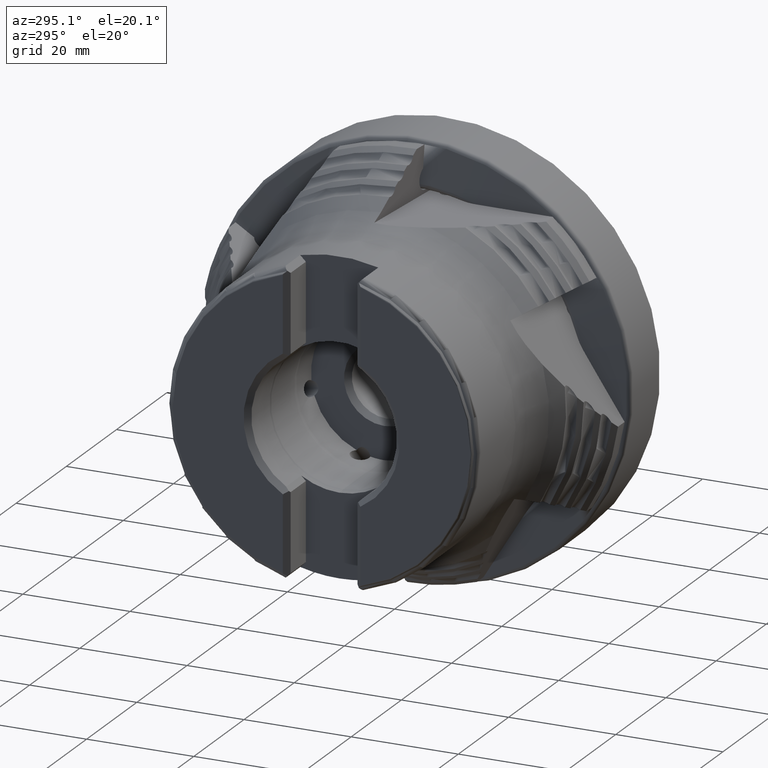
[diagram: clean part render]
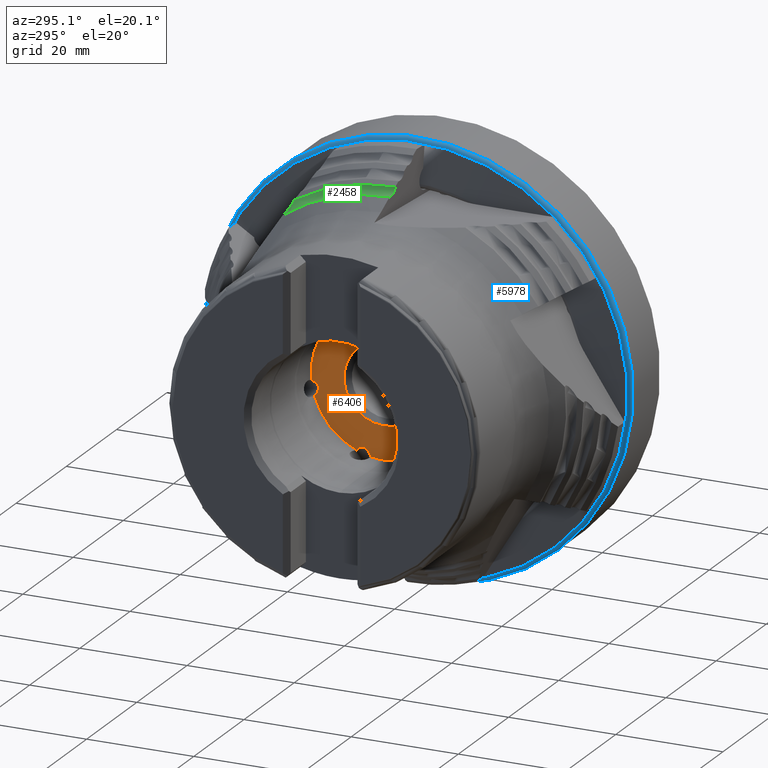
[diagram: same view with three faces highlighted in distinct colors, each labeled with its STEP entity id]
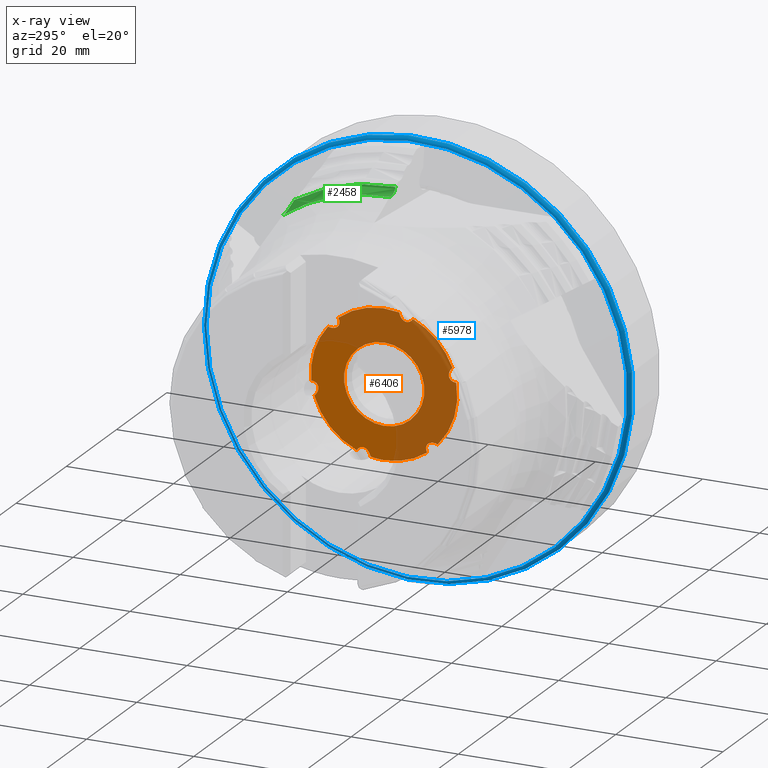
[diagram: x-ray of the same camera — body ghosted, the three highlighted faces saturated]
A machine part, auxiliary view with three faces highlighted in distinct colors.
The next image is the same camera in x-ray (body ghosted, the three faces saturated) — at least one of them is partly hidden behind the body in this view.
Their STEP definitions:

[orange] entity #6406 — the highlighted planar face has unit normal (1, 0, -0).
#122 = EDGE_CURVE ( 'NONE', #3301, #6272, #2686, .T. ) ;
#251 = DIRECTION ( 'NONE',  ( 1.000000000000000000, -0.0000000000000000000, -0.0000000000000000000 ) ) ;
#507 = DIRECTION ( 'NONE',  ( 0.0000000000000000000, 0.0000000000000000000, -1.000000000000000000 ) ) ;
#550 = ORIENTED_EDGE ( 'NONE', *, *, #2472, .T. ) ;
#559 = CARTESIAN_POINT ( 'NONE',  ( -24.14999999999999900, -5.355166302329699600, 12.55566381655676600 ) ) ;
#653 = AXIS2_PLACEMENT_3D ( 'NONE', #3065, #1648, #3492 ) ;
#677 = CARTESIAN_POINT ( 'NONE',  ( -24.14999999999999900, -12.72965397167429900, 4.927312630779319100 ) ) ;
#855 = ORIENTED_EDGE ( 'NONE', *, *, #4727, .T. ) ;
#1000 = DIRECTION ( 'NONE',  ( 1.000000000000000000, 0.0000000000000000000, -0.0000000000000000000 ) ) ;
#1160 = VERTEX_POINT ( 'NONE', #2982 ) ;
#1161 = CIRCLE ( 'NONE', #6235, 13.64999999999999700 ) ;
#1203 = CARTESIAN_POINT ( 'NONE',  ( -24.14999999999999900, 13.04235712854741000, -4.027334171810024600 ) ) ;
#1240 = CARTESIAN_POINT ( 'NONE',  ( -24.14999999999999900, 0.0000000000000000000, 0.0000000000000000000 ) ) ;
#1398 = EDGE_CURVE ( 'NONE', #7411, #3407, #5257, .T. ) ;
#1439 = EDGE_CURVE ( 'NONE', #7411, #1978, #6892, .T. ) ;
#1487 = CARTESIAN_POINT ( 'NONE',  ( -24.15000000000000200, -11.77646772936448900, 2.329950248189415400 ) ) ;
#1625 = CARTESIAN_POINT ( 'NONE',  ( -24.14999999999999900, 7.747165251437008800, 9.170348461575679600 ) ) ;
#1648 = DIRECTION ( 'NONE',  ( 1.000000000000000000, -0.0000000000000000000, -0.0000000000000000000 ) ) ;
#1714 = CARTESIAN_POINT ( 'NONE',  ( -24.14999999999999900, 0.0000000000000000000, 0.0000000000000000000 ) ) ;
#1820 = DIRECTION ( 'NONE',  ( 0.0000000000000000000, 0.0000000000000000000, -1.000000000000000000 ) ) ;
#1841 = AXIS2_PLACEMENT_3D ( 'NONE', #2883, #251, #507 ) ;
#1854 = CARTESIAN_POINT ( 'NONE',  ( -24.14999999999999900, -8.274319442910988100, -8.661872970892984500 ) ) ;
#1883 = EDGE_CURVE ( 'NONE', #6963, #6963, #2752, .T. ) ;
#1953 = FACE_OUTER_BOUND ( 'NONE', #6066, .T. ) ;
#1961 = CARTESIAN_POINT ( 'NONE',  ( -24.14999999999999900, 5.135224136547505800, -12.64721206699007400 ) ) ;
#1978 = VERTEX_POINT ( 'NONE', #6080 ) ;
#2060 = AXIS2_PLACEMENT_3D ( 'NONE', #7524, #7481, #5151 ) ;
#2140 = CIRCLE ( 'NONE', #6830, 13.64999999999999700 ) ;
#2156 = PLANE ( 'NONE',  #7587 ) ;
#2174 = DIRECTION ( 'NONE',  ( 1.000000000000000000, -0.0000000000000000000, -0.0000000000000000000 ) ) ;
#2288 = CARTESIAN_POINT ( 'NONE',  ( -24.14999999999999900, -4.459863322073081400, 11.14555873378392400 ) ) ;
#2326 = EDGE_CURVE ( 'NONE', #2745, #4959, #5345, .T. ) ;
#2472 = EDGE_CURVE ( 'NONE', #3301, #2589, #4269, .T. ) ;
#2474 = CARTESIAN_POINT ( 'NONE',  ( -24.14999999999999900, -8.004189918986114100, -11.05691836547605800 ) ) ;
#2589 = VERTEX_POINT ( 'NONE', #6225 ) ;
#2681 = ORIENTED_EDGE ( 'NONE', *, *, #7423, .F. ) ;
#2686 = CIRCLE ( 'NONE', #653, 13.64999999999999700 ) ;
#2727 = CARTESIAN_POINT ( 'NONE',  ( -24.14999999999999900, -12.72965397167429900, 4.927312630779319100 ) ) ;
#2745 = VERTEX_POINT ( 'NONE', #4218 ) ;
#2752 = CIRCLE ( 'NONE', #1841, 7.500000000000000900 ) ;
#2760 = CARTESIAN_POINT ( 'NONE',  ( -24.14999999999999900, 7.500000000000000900, 0.0000000000000000000 ) ) ;
#2836 = CARTESIAN_POINT ( 'NONE',  ( -24.14999999999999900, 8.716307180471522600, 8.216957754721477200 ) ) ;
#2868 = CARTESIAN_POINT ( 'NONE',  ( -24.14999999999999900, 2.567090770912582100, -13.40643669935806800 ) ) ;
#2876 = EDGE_CURVE ( 'NONE', #5522, #7275, #3687, .T. ) ;
#2883 = CARTESIAN_POINT ( 'NONE',  ( -24.14999999999999900, 0.0000000000000000000, 0.0000000000000000000 ) ) ;
#2982 = CARTESIAN_POINT ( 'NONE',  ( -24.14999999999999900, 8.571894850641234200, 10.62285830977468500 ) ) ;
#3065 = CARTESIAN_POINT ( 'NONE',  ( -24.14999999999999900, 0.0000000000000000000, 0.0000000000000000000 ) ) ;
#3083 = CARTESIAN_POINT ( 'NONE',  ( -24.14999999999999900, -10.00895226659014100, -9.281345512646362600 ) ) ;
#3207 = ORIENTED_EDGE ( 'NONE', *, *, #1398, .F. ) ;
#3301 = VERTEX_POINT ( 'NONE', #4167 ) ;
#3314 =( BOUNDED_CURVE ( )  B_SPLINE_CURVE ( 3, ( #5687, #1487, #6284, #2727 ),
 .UNSPECIFIED., .F., .T. ) 
 B_SPLINE_CURVE_WITH_KNOTS ( ( 4, 4 ),
 ( 2.283164507026651100, 4.412173605679448100 ),
 .UNSPECIFIED. ) 
 CURVE ( )  GEOMETRIC_REPRESENTATION_ITEM ( )  RATIONAL_B_SPLINE_CURVE ( ( 1.000000000000000000, 0.6566250446763890500, 0.6566250446763890500, 1.000000000000000000 ) ) 
 REPRESENTATION_ITEM ( '' )  );
#3407 = VERTEX_POINT ( 'NONE', #677 ) ;
#3492 = DIRECTION ( 'NONE',  ( 0.0000000000000000000, 0.0000000000000000000, -1.000000000000000000 ) ) ;
#3495 = ORIENTED_EDGE ( 'NONE', *, *, #2876, .F. ) ;
#3558 = FACE_BOUND ( 'NONE', #6748, .T. ) ;
#3671 = AXIS2_PLACEMENT_3D ( 'NONE', #1714, #6472, #4667 ) ;
#3687 = CIRCLE ( 'NONE', #2060, 13.64999999999999700 ) ;
#3921 =( BOUNDED_CURVE ( )  B_SPLINE_CURVE ( 3, ( #5795, #1625, #2836, #6975 ),
 .UNSPECIFIED., .F., .F. ) 
 B_SPLINE_CURVE_WITH_KNOTS ( ( 4, 4 ),
 ( 2.283164507026502300, 4.412173605679598200 ),
 .UNSPECIFIED. ) 
 CURVE ( )  GEOMETRIC_REPRESENTATION_ITEM ( )  RATIONAL_B_SPLINE_CURVE ( ( 1.000000000000000000, 0.6566250446763020100, 0.6566250446763020100, 1.000000000000000000 ) ) 
 REPRESENTATION_ITEM ( '' )  );
#4104 = CARTESIAN_POINT ( 'NONE',  ( -24.14999999999999900, -3.163084716417135400, 11.55367044207115300 ) ) ;
#4119 = ORIENTED_EDGE ( 'NONE', *, *, #6969, .T. ) ;
#4167 = CARTESIAN_POINT ( 'NONE',  ( -24.14999999999999900, 5.135224136547505800, -12.64721206699007400 ) ) ;
#4175 = EDGE_CURVE ( 'NONE', #1160, #1978, #1161, .T. ) ;
#4187 = CARTESIAN_POINT ( 'NONE',  ( -24.14999999999999900, 13.57766715156602500, -1.403372623819154400 ) ) ;
#4218 = CARTESIAN_POINT ( 'NONE',  ( -24.14999999999999900, -13.44669831120930300, 2.347084260805637700 ) ) ;
#4269 =( BOUNDED_CURVE ( )  B_SPLINE_CURVE ( 3, ( #1961, #7506, #4430, #2868 ),
 .UNSPECIFIED., .F., .F. ) 
 B_SPLINE_CURVE_WITH_KNOTS ( ( 4, 4 ),
 ( 2.283164507026531600, 4.412173605679568800 ),
 .UNSPECIFIED. ) 
 CURVE ( )  GEOMETRIC_REPRESENTATION_ITEM ( )  RATIONAL_B_SPLINE_CURVE ( ( 1.000000000000000000, 0.6566250446763191000, 0.6566250446763191000, 1.000000000000000000 ) ) 
 REPRESENTATION_ITEM ( '' )  );
#4295 = DIRECTION ( 'NONE',  ( 0.0000000000000000000, 0.0000000000000000000, -1.000000000000000000 ) ) ;
#4428 =( BOUNDED_CURVE ( )  B_SPLINE_CURVE ( 3, ( #4187, #6487, #4764, #1203 ),
 .UNSPECIFIED., .F., .F. ) 
 B_SPLINE_CURVE_WITH_KNOTS ( ( 4, 4 ),
 ( 2.283164507026590200, 4.412173605679510200 ),
 .UNSPECIFIED. ) 
 CURVE ( )  GEOMETRIC_REPRESENTATION_ITEM ( )  RATIONAL_B_SPLINE_CURVE ( ( 1.000000000000000000, 0.6566250446763533000, 0.6566250446763533000, 1.000000000000000000 ) ) 
 REPRESENTATION_ITEM ( '' )  );
#4430 = CARTESIAN_POINT ( 'NONE',  ( -24.14999999999999900, 2.960963610896607100, -11.60711420216772900 ) ) ;
#4529 = AXIS2_PLACEMENT_3D ( 'NONE', #4902, #7384, #4295 ) ;
#4580 = ORIENTED_EDGE ( 'NONE', *, *, #1883, .T. ) ;
#4609 = CARTESIAN_POINT ( 'NONE',  ( -24.14999999999999900, 13.57766715156602500, -1.403372623819154400 ) ) ;
#4667 = DIRECTION ( 'NONE',  ( 0.0000000000000000000, 0.0000000000000000000, -1.000000000000000000 ) ) ;
#4720 = CARTESIAN_POINT ( 'NONE',  ( -24.14999999999999900, -2.800674372707373300, 13.35959292261783600 ) ) ;
#4727 = EDGE_CURVE ( 'NONE', #4814, #4959, #6293, .T. ) ;
#4764 = CARTESIAN_POINT ( 'NONE',  ( -24.14999999999999900, 11.63856175860249400, -2.834834351142056200 ) ) ;
#4814 = VERTEX_POINT ( 'NONE', #5592 ) ;
#4902 = CARTESIAN_POINT ( 'NONE',  ( -24.14999999999999900, 0.0000000000000000000, 0.0000000000000000000 ) ) ;
#4959 = VERTEX_POINT ( 'NONE', #6904 ) ;
#5022 = ORIENTED_EDGE ( 'NONE', *, *, #4175, .F. ) ;
#5148 = ORIENTED_EDGE ( 'NONE', *, *, #6456, .T. ) ;
#5151 = DIRECTION ( 'NONE',  ( 0.0000000000000000000, 0.0000000000000000000, -1.000000000000000000 ) ) ;
#5154 = DIRECTION ( 'NONE',  ( -0.0000000000000000000, 0.0000000000000000000, -1.000000000000000000 ) ) ;
#5239 = ORIENTED_EDGE ( 'NONE', *, *, #2326, .F. ) ;
#5257 = CIRCLE ( 'NONE', #3671, 13.64999999999999700 ) ;
#5345 = CIRCLE ( 'NONE', #4529, 13.64999999999999700 ) ;
#5357 = CARTESIAN_POINT ( 'NONE',  ( -24.14999999999999900, -5.355166302329699600, 12.55566381655676600 ) ) ;
#5405 = DIRECTION ( 'NONE',  ( 1.000000000000000000, -0.0000000000000000000, -0.0000000000000000000 ) ) ;
#5440 = ORIENTED_EDGE ( 'NONE', *, *, #7690, .T. ) ;
#5522 = VERTEX_POINT ( 'NONE', #4609 ) ;
#5545 = CARTESIAN_POINT ( 'NONE',  ( -24.14999999999999900, 13.04235712854741000, -4.027334171810024600 ) ) ;
#5592 = CARTESIAN_POINT ( 'NONE',  ( -24.14999999999999900, -8.004189918986114100, -11.05691836547605800 ) ) ;
#5687 = CARTESIAN_POINT ( 'NONE',  ( -24.14999999999999900, -13.44669831120930300, 2.347084260805637700 ) ) ;
#5715 = CARTESIAN_POINT ( 'NONE',  ( -24.14999999999999900, 0.0000000000000000000, -7.500000000000000900 ) ) ;
#5734 = CARTESIAN_POINT ( 'NONE',  ( -24.14999999999999900, 0.0000000000000000000, 0.0000000000000000000 ) ) ;
#5795 = CARTESIAN_POINT ( 'NONE',  ( -24.14999999999999900, 8.571894850641234200, 10.62285830977468500 ) ) ;
#6028 = CARTESIAN_POINT ( 'NONE',  ( -24.14999999999999900, -7.256609074891951400, -9.563236119326793600 ) ) ;
#6066 = EDGE_LOOP ( 'NONE', ( #3495, #4119, #6525, #550, #2681, #855, #5239, #5440, #3207, #7666, #5022, #5148 ) ) ;
#6080 = CARTESIAN_POINT ( 'NONE',  ( -24.14999999999999900, -2.800674372707373300, 13.35959292261783600 ) ) ;
#6225 = CARTESIAN_POINT ( 'NONE',  ( -24.14999999999999900, 2.567090770912582100, -13.40643669935806800 ) ) ;
#6235 = AXIS2_PLACEMENT_3D ( 'NONE', #5734, #2174, #6321 ) ;
#6272 = VERTEX_POINT ( 'NONE', #5545 ) ;
#6284 = CARTESIAN_POINT ( 'NONE',  ( -24.15000000000000200, -11.41246275912635100, 3.639793864874183000 ) ) ;
#6293 =( BOUNDED_CURVE ( )  B_SPLINE_CURVE ( 3, ( #2474, #6028, #1854, #3083 ),
 .UNSPECIFIED., .F., .F. ) 
 B_SPLINE_CURVE_WITH_KNOTS ( ( 4, 4 ),
 ( 2.283164507026641800, 4.412173605679457800 ),
 .UNSPECIFIED. ) 
 CURVE ( )  GEOMETRIC_REPRESENTATION_ITEM ( )  RATIONAL_B_SPLINE_CURVE ( ( 1.000000000000000000, 0.6566250446763835000, 0.6566250446763835000, 1.000000000000000000 ) ) 
 REPRESENTATION_ITEM ( '' )  );
#6321 = DIRECTION ( 'NONE',  ( 0.0000000000000000000, 0.0000000000000000000, -1.000000000000000000 ) ) ;
#6406 = ADVANCED_FACE ( 'NONE', ( #1953, #3558 ), #2156, .F. ) ;
#6456 = EDGE_CURVE ( 'NONE', #1160, #7275, #3921, .T. ) ;
#6472 = DIRECTION ( 'NONE',  ( 1.000000000000000000, -0.0000000000000000000, -0.0000000000000000000 ) ) ;
#6487 = CARTESIAN_POINT ( 'NONE',  ( -24.14999999999999900, 11.91030995917180800, -1.502789744525756500 ) ) ;
#6525 = ORIENTED_EDGE ( 'NONE', *, *, #122, .F. ) ;
#6748 = EDGE_LOOP ( 'NONE', ( #4580 ) ) ;
#6830 = AXIS2_PLACEMENT_3D ( 'NONE', #1240, #5405, #1820 ) ;
#6892 =( BOUNDED_CURVE ( )  B_SPLINE_CURVE ( 3, ( #559, #2288, #4104, #4720 ),
 .UNSPECIFIED., .F., .F. ) 
 B_SPLINE_CURVE_WITH_KNOTS ( ( 4, 4 ),
 ( 2.283164507026615100, 4.412173605679485400 ),
 .UNSPECIFIED. ) 
 CURVE ( )  GEOMETRIC_REPRESENTATION_ITEM ( )  RATIONAL_B_SPLINE_CURVE ( ( 1.000000000000000000, 0.6566250446763677300, 0.6566250446763677300, 1.000000000000000000 ) ) 
 REPRESENTATION_ITEM ( '' )  );
#6904 = CARTESIAN_POINT ( 'NONE',  ( -24.14999999999999900, -10.00895226659014100, -9.281345512646362600 ) ) ;
#6963 = VERTEX_POINT ( 'NONE', #5715 ) ;
#6969 = EDGE_CURVE ( 'NONE', #5522, #6272, #4428, .T. ) ;
#6975 = CARTESIAN_POINT ( 'NONE',  ( -24.14999999999999900, 10.48098343799155300, 8.744797663327927900 ) ) ;
#7275 = VERTEX_POINT ( 'NONE', #7643 ) ;
#7384 = DIRECTION ( 'NONE',  ( 1.000000000000000000, -0.0000000000000000000, -0.0000000000000000000 ) ) ;
#7411 = VERTEX_POINT ( 'NONE', #5357 ) ;
#7423 = EDGE_CURVE ( 'NONE', #4814, #2589, #2140, .T. ) ;
#7481 = DIRECTION ( 'NONE',  ( 1.000000000000000000, -0.0000000000000000000, -0.0000000000000000000 ) ) ;
#7506 = CARTESIAN_POINT ( 'NONE',  ( -24.14999999999999900, 4.264667242294820900, -11.22169655855543300 ) ) ;
#7524 = CARTESIAN_POINT ( 'NONE',  ( -24.14999999999999900, 0.0000000000000000000, 0.0000000000000000000 ) ) ;
#7587 = AXIS2_PLACEMENT_3D ( 'NONE', #2760, #1000, #5154 ) ;
#7643 = CARTESIAN_POINT ( 'NONE',  ( -24.14999999999999900, 10.48098343799155300, 8.744797663327927900 ) ) ;
#7666 = ORIENTED_EDGE ( 'NONE', *, *, #1439, .T. ) ;
#7690 = EDGE_CURVE ( 'NONE', #2745, #3407, #3314, .T. ) ;

[blue] entity #5978 — the highlighted toroidal blend (fillet) surface has major radius 39.2104 mm and minor (blend) radius 0.8 mm.
#667 = VERTEX_POINT ( 'NONE', #6905 ) ;
#1055 = DIRECTION ( 'NONE',  ( 1.000000000000000000, 1.239285763332018300E-016, -0.0000000000000000000 ) ) ;
#1568 = CARTESIAN_POINT ( 'NONE',  ( -10.33855996626877200, 40.01039758286714200, 0.0000000000000000000 ) ) ;
#1793 = AXIS2_PLACEMENT_3D ( 'NONE', #3024, #4465, #6703 ) ;
#2541 = EDGE_CURVE ( 'NONE', #667, #667, #5336, .T. ) ;
#2621 = CIRCLE ( 'NONE', #4190, 40.01039758286714200 ) ;
#2816 = DIRECTION ( 'NONE',  ( -1.239285763332018300E-016, 1.000000000000000000, 0.0000000000000000000 ) ) ;
#3024 = CARTESIAN_POINT ( 'NONE',  ( -11.13815714679163400, -2.515981232292923300E-015, 0.0000000000000000000 ) ) ;
#3452 = VERTEX_POINT ( 'NONE', #1568 ) ;
#4023 = CARTESIAN_POINT ( 'NONE',  ( -10.34061875991130500, 0.0000000000000000000, 0.0000000000000000000 ) ) ;
#4190 = AXIS2_PLACEMENT_3D ( 'NONE', #4632, #1055, #5212 ) ;
#4465 = DIRECTION ( 'NONE',  ( 1.000000000000000000, 1.239285763332018300E-016, -0.0000000000000000000 ) ) ;
#4588 = AXIS2_PLACEMENT_3D ( 'NONE', #4023, #6371, #2816 ) ;
#4632 = CARTESIAN_POINT ( 'NONE',  ( -10.33855996626876600, -2.416888292070682200E-015, 0.0000000000000000000 ) ) ;
#4767 = FACE_OUTER_BOUND ( 'NONE', #6475, .T. ) ;
#5212 = DIRECTION ( 'NONE',  ( -1.300704502411368100E-016, 1.000000000000000000, 0.0000000000000000000 ) ) ;
#5336 = CIRCLE ( 'NONE', #1793, 39.27311005144115100 ) ;
#5614 = EDGE_LOOP ( 'NONE', ( #6652 ) ) ;
#5785 = TOROIDAL_SURFACE ( 'NONE', #4588, 39.21040023201606300, 0.8000000000000008200 ) ;
#5905 = ORIENTED_EDGE ( 'NONE', *, *, #2541, .T. ) ;
#5978 = ADVANCED_FACE ( 'NONE', ( #4767, #6333 ), #5785, .T. ) ;
#5981 = EDGE_CURVE ( 'NONE', #3452, #3452, #2621, .T. ) ;
#6333 = FACE_OUTER_BOUND ( 'NONE', #5614, .T. ) ;
#6371 = DIRECTION ( 'NONE',  ( 1.000000000000000000, 1.239285763332018300E-016, -0.0000000000000000000 ) ) ;
#6475 = EDGE_LOOP ( 'NONE', ( #5905 ) ) ;
#6652 = ORIENTED_EDGE ( 'NONE', *, *, #5981, .F. ) ;
#6703 = DIRECTION ( 'NONE',  ( -1.325123073042556400E-016, 1.000000000000000000, 0.0000000000000000000 ) ) ;
#6905 = CARTESIAN_POINT ( 'NONE',  ( -11.13815714679163800, 39.27311005144115100, 0.0000000000000000000 ) ) ;

[green] entity #2458 — the highlighted toroidal blend (fillet) surface has major radius 34.7235 mm and minor (blend) radius 1.5 mm.
#129 = CARTESIAN_POINT ( 'NONE',  ( -20.87957580958232700, 18.63661059072249800, 28.67115775468463200 ) ) ;
#156 = CARTESIAN_POINT ( 'NONE',  ( -22.54000634197506200, 19.67839437775188200, 26.79173005221607100 ) ) ;
#307 = CARTESIAN_POINT ( 'NONE',  ( -22.68271114136321400, 0.0000000000000000000, 0.0000000000000000000 ) ) ;
#407 = CARTESIAN_POINT ( 'NONE',  ( -20.85250192876549500, -0.5002649218642911700, 34.28601605589481900 ) ) ;
#438 = CARTESIAN_POINT ( 'NONE',  ( -20.80951514497602900, 18.33071290178912700, 29.22301179374760900 ) ) ;
#708 = TOROIDAL_SURFACE ( 'NONE', #3563, 34.72352686721698200, 1.500000000000000700 ) ;
#734 = CARTESIAN_POINT ( 'NONE',  ( -21.11517196749746400, 19.07995632652114200, 27.87134087520792000 ) ) ;
#760 = CARTESIAN_POINT ( 'NONE',  ( -22.68271114136321000, 19.64000985818027800, 26.86097755858639500 ) ) ;
#997 = CARTESIAN_POINT ( 'NONE',  ( -20.97525271980875100, -0.4844331402557297600, 33.99436185252132200 ) ) ;
#1008 = CARTESIAN_POINT ( 'NONE',  ( -20.80951514497602900, 18.33071290178912700, 29.22301179374760900 ) ) ;
#1110 = VERTEX_POINT ( 'NONE', #6782 ) ;
#1311 = CARTESIAN_POINT ( 'NONE',  ( -21.38954971518948900, 19.36089260117362100, 27.36451841954677600 ) ) ;
#1567 = CARTESIAN_POINT ( 'NONE',  ( -21.29886849839390100, -0.4488359050651766800, 33.57727887768575700 ) ) ;
#1888 = CARTESIAN_POINT ( 'NONE',  ( -21.66879961257322800, 19.55050709138455600, 27.02244482411481000 ) ) ;
#1947 = CARTESIAN_POINT ( 'NONE',  ( -20.80951514497603200, -0.5076328711259674400, 34.49263345489124100 ) ) ;
#2030 = DIRECTION ( 'NONE',  ( 1.000000000000000000, -0.0000000000000000000, -0.0000000000000000000 ) ) ;
#2065 = CIRCLE ( 'NONE', #3359, 34.49636870433365500 ) ;
#2184 = CARTESIAN_POINT ( 'NONE',  ( -21.85059638799013700, -0.3952370590015184500, 33.27240705223521600 ) ) ;
#2315 = EDGE_CURVE ( 'NONE', #1110, #6443, #2542, .T. ) ;
#2458 = ADVANCED_FACE ( 'NONE', ( #3695 ), #708, .F. ) ;
#2500 = CARTESIAN_POINT ( 'NONE',  ( -21.91997313905631400, 19.64769820386007000, 26.84710741582102500 ) ) ;
#2542 = CIRCLE ( 'NONE', #3738, 33.27524759685944400 ) ;
#2633 = DIRECTION ( 'NONE',  ( 0.0000000000000000000, 0.0000000000000000000, -1.000000000000000000 ) ) ;
#2690 = B_SPLINE_CURVE_WITH_KNOTS ( 'NONE', 3,
 ( #5713, #7500, #407, #4575, #997, #5149, #1567, #5738, #2184, #6325, #2781, #6935, #3392, #7521 ),
 .UNSPECIFIED., .F., .F.,
 ( 4, 2, 2, 2, 2, 2, 4 ),
 ( 1.305898720181756400E-006, 0.0003159758392047813200, 0.0006306457796893808700, 0.001259985660658591600, 0.001889325541627802400, 0.002203995482112411500, 0.002518665422597020100 ),
 .UNSPECIFIED. ) ;
#2781 = CARTESIAN_POINT ( 'NONE',  ( -22.26798413005232600, -0.3577678049131852200, 33.21815369653160100 ) ) ;
#3114 = CARTESIAN_POINT ( 'NONE',  ( -22.14330794898695800, 19.69379761793775100, 26.76394187133483600 ) ) ;
#3359 = AXIS2_PLACEMENT_3D ( 'NONE', #5599, #2030, #6195 ) ;
#3392 = CARTESIAN_POINT ( 'NONE',  ( -22.58033562299957700, -0.3309224615037382700, 33.24599856345074800 ) ) ;
#3551 = EDGE_CURVE ( 'NONE', #4423, #6579, #2065, .T. ) ;
#3563 = AXIS2_PLACEMENT_3D ( 'NONE', #3729, #7270, #2633 ) ;
#3695 = FACE_OUTER_BOUND ( 'NONE', #6929, .T. ) ;
#3706 = CARTESIAN_POINT ( 'NONE',  ( -20.83308278981774500, 18.48502323109625000, 28.94462859054588900 ) ) ;
#3729 = CARTESIAN_POINT ( 'NONE',  ( -22.29221510418405600, 0.0000000000000000000, 0.0000000000000000000 ) ) ;
#3735 = CARTESIAN_POINT ( 'NONE',  ( -22.38485517274976600, 19.69897749906666800, 26.75459711841163500 ) ) ;
#3738 = AXIS2_PLACEMENT_3D ( 'NONE', #307, #6294, #7447 ) ;
#3970 = ORIENTED_EDGE ( 'NONE', *, *, #5021, .T. ) ;
#4304 = CARTESIAN_POINT ( 'NONE',  ( -21.02119662947880500, 18.93400869638320200, 28.13463736974542300 ) ) ;
#4331 = CARTESIAN_POINT ( 'NONE',  ( -22.61428494095454800, 19.66131267439180500, 26.82254626081903100 ) ) ;
#4423 = VERTEX_POINT ( 'NONE', #1008 ) ;
#4526 = ORIENTED_EDGE ( 'NONE', *, *, #3551, .F. ) ;
#4575 = CARTESIAN_POINT ( 'NONE',  ( -20.92692641196598700, -0.4903298359362658900, 34.08992423269573600 ) ) ;
#4866 = CARTESIAN_POINT ( 'NONE',  ( -21.31393341957851500, 19.29201274055575900, 27.48878097747783400 ) ) ;
#4996 = EDGE_CURVE ( 'NONE', #6579, #6443, #2690, .T. ) ;
#5021 = EDGE_CURVE ( 'NONE', #4423, #1110, #6574, .T. ) ;
#5149 = CARTESIAN_POINT ( 'NONE',  ( -21.14639335887766000, -0.4648386930731345800, 33.72972229792070200 ) ) ;
#5203 = CARTESIAN_POINT ( 'NONE',  ( -22.68271114136321700, -0.3224476727833329700, 33.27368525021862000 ) ) ;
#5454 = ORIENTED_EDGE ( 'NONE', *, *, #2315, .T. ) ;
#5463 = CARTESIAN_POINT ( 'NONE',  ( -21.56792694855400300, 19.49048908158116700, 27.13072017997646800 ) ) ;
#5540 = ORIENTED_EDGE ( 'NONE', *, *, #4996, .F. ) ;
#5599 = CARTESIAN_POINT ( 'NONE',  ( -20.80951514497602900, 0.0000000000000000000, 0.0000000000000000000 ) ) ;
#5713 = CARTESIAN_POINT ( 'NONE',  ( -20.80951514497603200, -0.5076328711259674400, 34.49263345489124100 ) ) ;
#5738 = CARTESIAN_POINT ( 'NONE',  ( -21.64957247592101600, -0.4141735181546622500, 33.34954607829743600 ) ) ;
#6056 = CARTESIAN_POINT ( 'NONE',  ( -21.85229482447021400, 19.62523834508398900, 26.88762607362972500 ) ) ;
#6195 = DIRECTION ( 'NONE',  ( 0.0000000000000000000, 0.0000000000000000000, -1.000000000000000000 ) ) ;
#6294 = DIRECTION ( 'NONE',  ( 1.000000000000000000, -0.0000000000000000000, -0.0000000000000000000 ) ) ;
#6325 = CARTESIAN_POINT ( 'NONE',  ( -22.16131194529639000, -0.3671959742727857700, 33.22354702291281100 ) ) ;
#6443 = VERTEX_POINT ( 'NONE', #5203 ) ;
#6574 = B_SPLINE_CURVE_WITH_KNOTS ( 'NONE', 3,
 ( #438, #3706, #129, #4304, #734, #4866, #1311, #5463, #1888, #6056, #2500, #6654, #3114, #7244, #3735, #156, #4331, #760 ),
 .UNSPECIFIED., .F., .F.,
 ( 4, 2, 2, 2, 2, 2, 2, 2, 4 ),
 ( 2.678681883189777600E-006, 0.0009469466833248691800, 0.001891214684766548600, 0.002363348685487392900, 0.002835482686208236800, 0.003071549686568652000, 0.003307616686929067200, 0.003543683687289482000, 0.003779750687649897700 ),
 .UNSPECIFIED. ) ;
#6579 = VERTEX_POINT ( 'NONE', #1947 ) ;
#6654 = CARTESIAN_POINT ( 'NONE',  ( -22.06455994124622300, 19.68187312128609500, 26.78545423275201300 ) ) ;
#6782 = CARTESIAN_POINT ( 'NONE',  ( -22.68271114136321000, 19.64000985818027800, 26.86097755858639500 ) ) ;
#6929 = EDGE_LOOP ( 'NONE', ( #4526, #3970, #5454, #5540 ) ) ;
#6935 = CARTESIAN_POINT ( 'NONE',  ( -22.47689820001886600, -0.3396860464437616000, 33.22953368838657400 ) ) ;
#7244 = CARTESIAN_POINT ( 'NONE',  ( -22.30232519929158000, 19.70236214876986100, 26.74849104871222800 ) ) ;
#7270 = DIRECTION ( 'NONE',  ( 1.000000000000000000, -0.0000000000000000000, -0.0000000000000000000 ) ) ;
#7447 = DIRECTION ( 'NONE',  ( 0.0000000000000000000, 0.0000000000000000000, -1.000000000000000000 ) ) ;
#7500 = CARTESIAN_POINT ( 'NONE',  ( -20.82562437989259500, -0.5043885554732022700, 34.38752209955495700 ) ) ;
#7521 = CARTESIAN_POINT ( 'NONE',  ( -22.68271114136321700, -0.3224476727833329700, 33.27368525021862000 ) ) ;